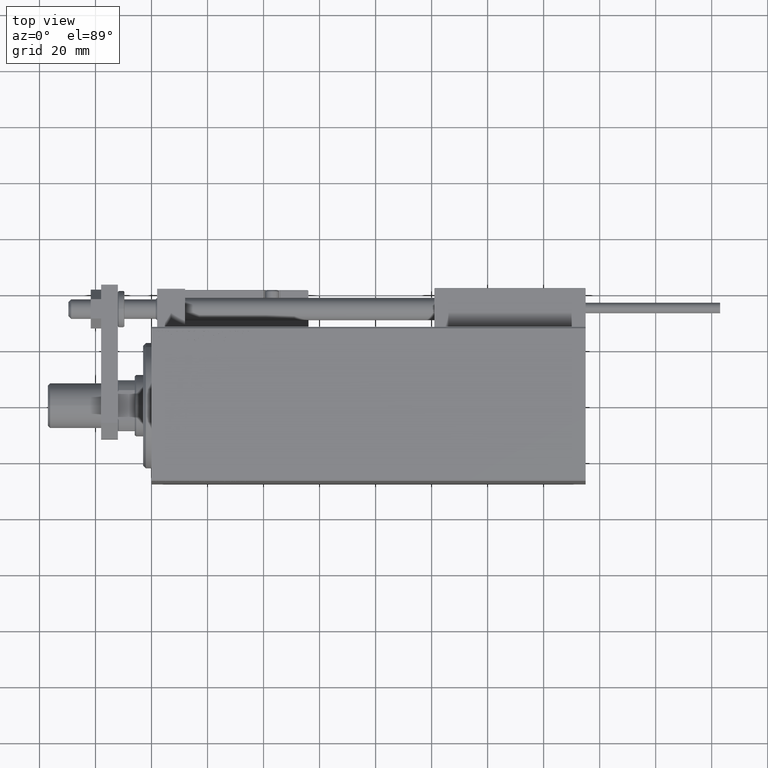
[diagram: clean part render]
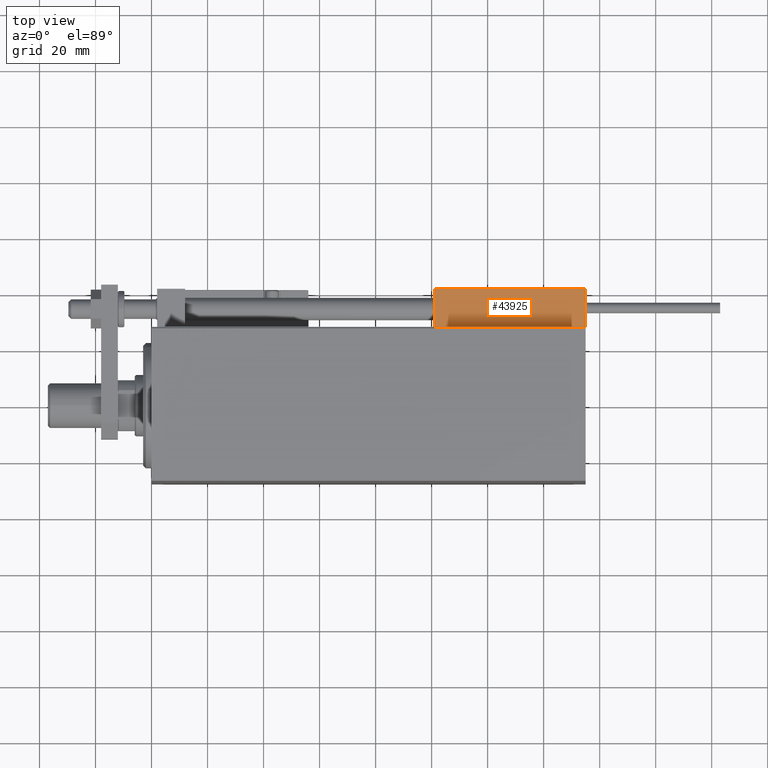
[diagram: same view with one face highlighted and labeled with its STEP entity id]
A machine part, top view. The second image highlights one B-rep face of the part: STEP entity #43925.
In plain terms, the highlighted planar face has unit normal (-0, -0, -1).
Its self-contained STEP definition (entity closure, byte-faithful):
#1571 = VECTOR ( 'NONE', #41082, 1000.000000000000000 ) ;
#1575 = LINE ( 'NONE', #2576, #1571 ) ;
#2576 = CARTESIAN_POINT ( 'NONE',  ( 27.00000000000006395, 20.00000000000001776, 13.70000000000000107 ) ) ;
#2768 = ORIENTED_EDGE ( 'NONE', *, *, #22738, .T. ) ;
#3463 = EDGE_LOOP ( 'NONE', ( #47409, #25053, #2768, #13075 ) ) ;
#4037 = DIRECTION ( 'NONE',  ( -1.000000000000000000, 6.424901762877062263E-17, 0.000000000000000000 ) ) ;
#4677 = CARTESIAN_POINT ( 'NONE',  ( 27.00000000000006395, 20.00000000000001776, 0.000000000000000000 ) ) ;
#5192 = VECTOR ( 'NONE', #38329, 1000.000000000000000 ) ;
#6162 = DIRECTION ( 'NONE',  ( -0.000000000000000000, -0.000000000000000000, -1.000000000000000000 ) ) ;
#8519 = VECTOR ( 'NONE', #6162, 1000.000000000000000 ) ;
#9024 = FACE_OUTER_BOUND ( 'NONE', #3463, .T. ) ;
#13075 = ORIENTED_EDGE ( 'NONE', *, *, #40675, .T. ) ;
#14490 = VERTEX_POINT ( 'NONE', #46997 ) ;
#16049 = CARTESIAN_POINT ( 'NONE',  ( 27.00000000000006395, 20.00000000000001776, 0.000000000000000000 ) ) ;
#16957 = CARTESIAN_POINT ( 'NONE',  ( -26.99999999999993605, 20.00000000000002132, 0.000000000000000000 ) ) ;
#16963 = DIRECTION ( 'NONE',  ( -6.424901762877063495E-17, -1.000000000000000000, 0.000000000000000000 ) ) ;
#17080 = VECTOR ( 'NONE', #4037, 1000.000000000000000 ) ;
#20658 = VERTEX_POINT ( 'NONE', #16957 ) ;
#21479 = CARTESIAN_POINT ( 'NONE',  ( -26.99999999999993605, 20.00000000000002132, 13.70000000000000107 ) ) ;
#22738 = EDGE_CURVE ( 'NONE', #14490, #49017, #30128, .T. ) ;
#25053 = ORIENTED_EDGE ( 'NONE', *, *, #38128, .T. ) ;
#26036 = EDGE_CURVE ( 'NONE', #34543, #20658, #44918, .T. ) ;
#30128 = LINE ( 'NONE', #49121, #5192 ) ;
#34543 = VERTEX_POINT ( 'NONE', #21479 ) ;
#35987 = CARTESIAN_POINT ( 'NONE',  ( 27.00000000000006395, 20.00000000000001776, 14.00000000000000000 ) ) ;
#38128 = EDGE_CURVE ( 'NONE', #34543, #14490, #1575, .T. ) ;
#38329 = DIRECTION ( 'NONE',  ( -0.000000000000000000, -0.000000000000000000, -1.000000000000000000 ) ) ;
#39193 = LINE ( 'NONE', #16049, #17080 ) ;
#39723 = AXIS2_PLACEMENT_3D ( 'NONE', #35987, #16963, #48022 ) ;
#40675 = EDGE_CURVE ( 'NONE', #49017, #20658, #39193, .T. ) ;
#41082 = DIRECTION ( 'NONE',  ( 1.000000000000000000, -6.424901762877063495E-17, -0.000000000000000000 ) ) ;
#41311 = CARTESIAN_POINT ( 'NONE',  ( -26.99999999999993605, 20.00000000000002132, 14.00000000000000000 ) ) ;
#43412 = PLANE ( 'NONE',  #39723 ) ;
#43925 = ADVANCED_FACE ( 'NONE', ( #9024 ), #43412, .F. ) ;
#44918 = LINE ( 'NONE', #41311, #8519 ) ;
#46997 = CARTESIAN_POINT ( 'NONE',  ( 27.00000000000006395, 20.00000000000001776, 13.70000000000000107 ) ) ;
#47409 = ORIENTED_EDGE ( 'NONE', *, *, #26036, .F. ) ;
#48022 = DIRECTION ( 'NONE',  ( 1.000000000000000000, -6.424901762877063495E-17, 0.000000000000000000 ) ) ;
#49017 = VERTEX_POINT ( 'NONE', #4677 ) ;
#49121 = CARTESIAN_POINT ( 'NONE',  ( 27.00000000000006395, 20.00000000000001776, 14.00000000000000000 ) ) ;